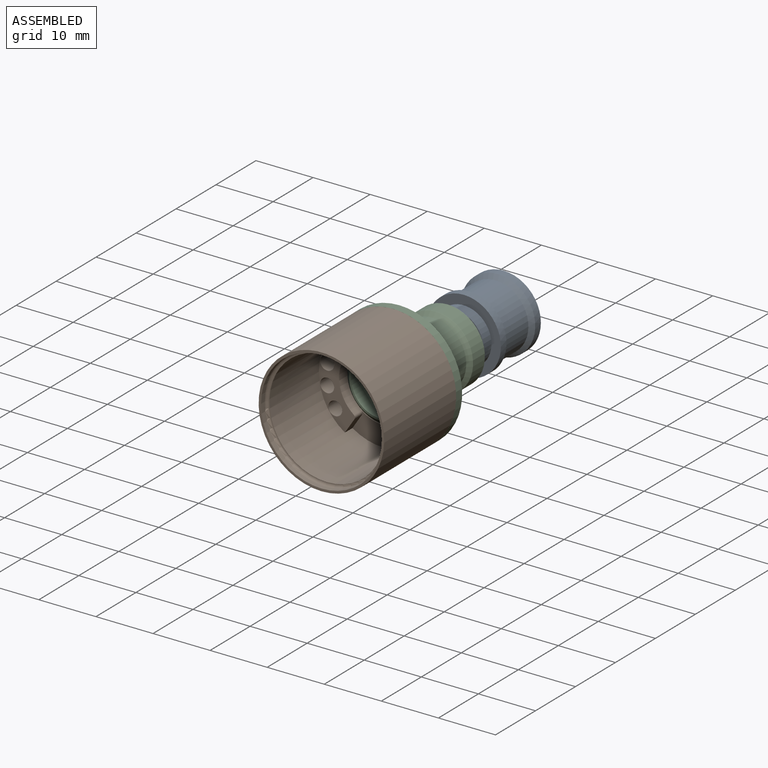
[diagram: assembled view]
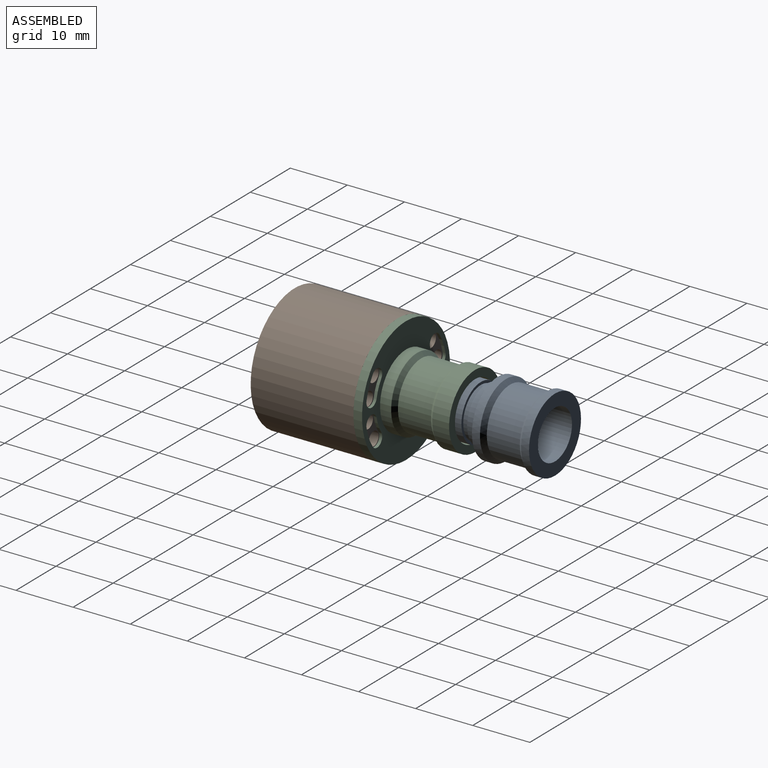
[diagram: assembled view, second angle]
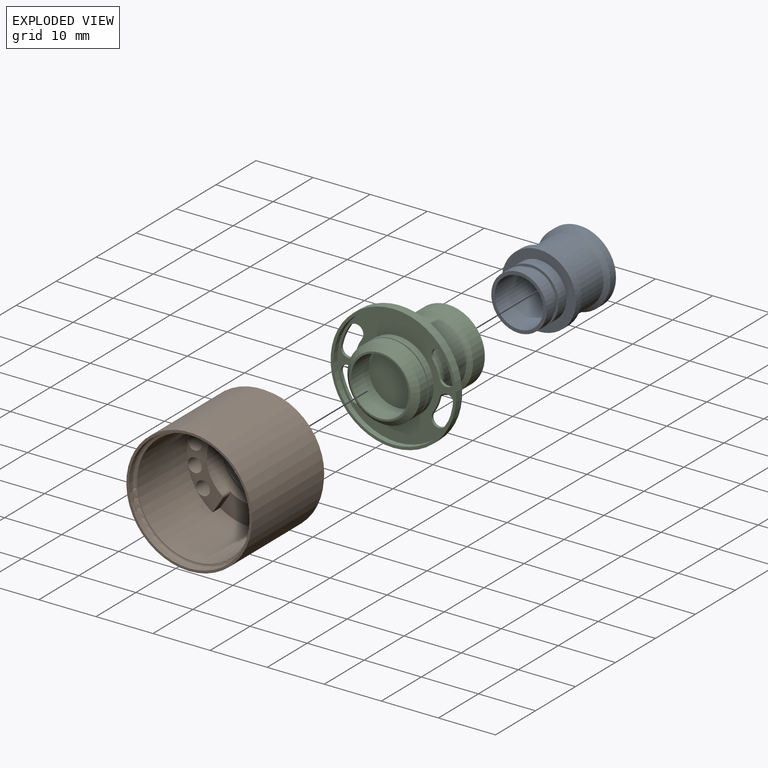
[diagram: exploded view]
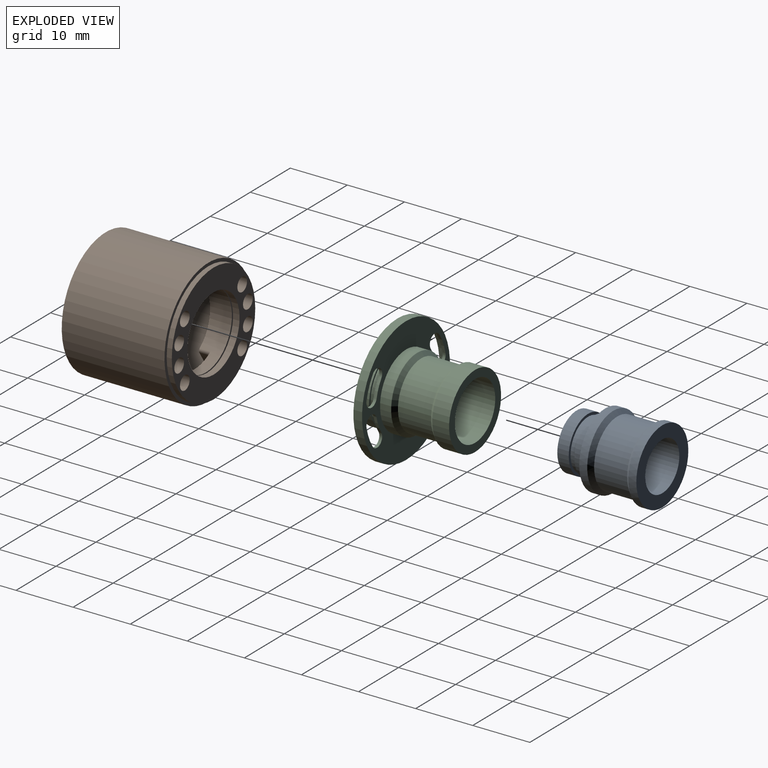
[diagram: exploded view, second angle]
ASSEMBLY  parts=3 mates=3
PART A: 14 faces, bbox 13x13x15 mm
  f0: cylinder r=4.85mm len=9.7mm, axis (0,0,1), area 60.9mm2, adj f4,f12
  f1: cylinder r=6.51mm len=13.01mm, axis (0,0,-1), area 57.2mm2, adj f5,f8
  f2: cylinder r=6.51mm len=13.01mm, axis (0,0,-1), area 57.2mm2, adj f6,f10
  f3: cylinder r=4.85mm len=9.7mm, axis (0,0,1), area 60.9mm2, adj f6,f13
  f4: plane 9.7x9.7mm, normal (0,0,-1), area 17mm2, adj f0,f7
  f5: plane 13.01x13.01mm, normal (0,0,1), area 76.1mm2, adj f1,f7
  f6: plane 13.01x13.01mm, normal (0,0,-1), area 59mm2, adj f2,f3
  f7: cylinder r=4.25mm len=15mm, axis (0,0,1), area 401mm2, adj f4,f5
  f8: cone r=5.79mm half-angle=45deg, axis (0,0,1), area 38.8mm2, adj f1,f9
  f9: cylinder r=5.79mm len=11.59mm, axis (0,0,-1), area 210.5mm2, adj f8,f10
  f10: cone r=6.51mm half-angle=45deg, axis (0,0,-1), area 38.8mm2, adj f2,f9
  f11: cylinder r=4.39mm len=8.79mm, axis (0,0,1), area 27.6mm2, adj f12,f13
  f12: plane 9.7x9.7mm, normal (0,0,1), area 13.3mm2, adj f0,f11
  f13: plane 9.7x9.7mm, normal (0,0,-1), area 13.3mm2, adj f3,f11
PART B: 34 faces, bbox 22.9x18.9x22.9 mm
  f0: cylinder r=6.52mm len=13.04mm, axis (0,1,0), area 124.9mm2, adj f10,f13,f14,f15,f18,f19,f20,f21
  f1: cylinder r=10.06mm len=20.12mm, axis (0,-1,0), area 825.9mm2, adj f8,f11,f12,f14,f16,f17,f19,f20
  f2: cylinder r=10.44mm len=20.88mm, axis (0,1,0), area 58.4mm2, adj f3,f6
  f3: plane 20.88x20.88mm, normal (0,1,0), area 171.8mm2, adj f2,f9,f22,f23,f24,f25,f26,f27
  f4: cylinder r=11mm len=22mm, axis (0,1,0), area 1244.1mm2, adj f5,f6
  f5: plane 22x22mm, normal (0,-1,0), area 28.5mm2, adj f4,f7
  f6: plane 22x22mm, normal (0,1,0), area 37.7mm2, adj f2,f4
  f7: cylinder r=10.58mm len=21.16mm, axis (0,-1,0), area 56.5mm2, adj f5,f33
  f8: plane 20.16x20.16mm, normal (0,-1,0), area 1.3mm2, adj f1,f33
  f9: cylinder r=6.52mm len=13.04mm, axis (0,1,0), area 46.7mm2, adj f3,f31
  f10: cylinder r=0.5mm len=1.89mm, axis (0,1,0), area 1.4mm2, adj f0,f11,f14,f20
  f11: plane 2.56x1.89mm, normal (0.84,0,0.55), area 5.8mm2, adj f1,f10,f14,f20
  f12: plane 2.56x1.89mm, normal (0.84,0,-0.55), area 5.8mm2, adj f1,f13,f14,f21
  f13: cylinder r=0.5mm len=1.89mm, axis (0,1,0), area 1.4mm2, adj f0,f12,f14,f21
  f14: plane 16.85x6.31mm, normal (0,-1,0), area 39.6mm2, adj f0,f1,f10,f11,f12,f13,f22,f23
  f15: cylinder r=0.5mm len=1.89mm, axis (0,1,0), area 1.4mm2, adj f0,f16,f19,f21
  f16: plane 2.56x1.89mm, normal (-0.84,0,-0.55), area 5.8mm2, adj f1,f15,f19,f21
  f17: plane 2.56x1.89mm, normal (-0.84,0,0.55), area 5.8mm2, adj f1,f18,f19,f20
  f18: cylinder r=0.5mm len=1.89mm, axis (0,1,0), area 1.4mm2, adj f0,f17,f19,f20
  f19: plane 16.85x6.31mm, normal (0,-1,0), area 39.6mm2, adj f0,f1,f15,f16,f17,f18,f24,f25
  f20: plane 11x4.87mm, normal (0,-1,0), area 34mm2, adj f0,f1,f10,f11,f17,f18
  f21: plane 11x4.87mm, normal (0,-1,0), area 34mm2, adj f0,f1,f12,f13,f15,f16
  f22: cylinder r=1.21mm len=5.17mm, axis (0,1,0), area 39.5mm2, adj f3,f14
  f23: cylinder r=1.21mm len=5.17mm, axis (0,1,0), area 39.5mm2, adj f3,f14
  f24: cylinder r=1.21mm len=5.17mm, axis (0,1,0), area 39.5mm2, adj f3,f19
  f25: cylinder r=1.21mm len=5.17mm, axis (0,1,0), area 39.5mm2, adj f3,f19
  f26: cylinder r=1.21mm len=5.17mm, axis (0,1,0), area 39.5mm2, adj f3,f19
  f27: cylinder r=1.21mm len=5.17mm, axis (0,1,0), area 39.5mm2, adj f3,f19
  f28: cylinder r=1.21mm len=5.17mm, axis (0,1,0), area 39.5mm2, adj f3,f14
  f29: cylinder r=1.21mm len=5.17mm, axis (0,1,0), area 39.5mm2, adj f3,f14
  f30: plane 14.02x14.02mm, normal (0,1,0), area 20.9mm2, adj f0,f32
  f31: plane 14.02x14.02mm, normal (0,-1,0), area 20.9mm2, adj f9,f32
  f32: cylinder r=7.01mm len=14.02mm, axis (0,1,0), area 8.8mm2, adj f30,f31
  f33: torus R=10.08mm, axis (0,-1,0), area 51.3mm2, adj f7,f8
PART C: 40 faces, bbox 22x17x22 mm
  f0: cylinder r=11mm len=22mm, axis (0,1,0), area 104.4mm2, adj f1,f2
  f1: plane 22x22mm, normal (0,-1,0), area 33.1mm2, adj f0,f3
  f2: plane 22x22mm, normal (0,1,0), area 190.4mm2, adj f0,f6,f16,f17,f18,f19,f20,f21
  f3: cylinder r=10.51mm len=21.02mm, axis (0,-1,0), area 66mm2, adj f1,f4
  f4: plane 21.02x21.02mm, normal (0,-1,0), area 162.5mm2, adj f3,f5,f16,f17,f18,f19,f20,f21
  f5: cylinder r=6.38mm len=12.75mm, axis (0,1,0), area 50.1mm2, adj f4,f34
  f6: cylinder r=6.51mm len=13.01mm, axis (0,-1,0), area 77.8mm2, adj f2,f14
  f7: cone r=6.51mm half-angle=45deg, axis (0,1,0), area 36.9mm2, adj f8,f15
  f8: cylinder r=5.8mm len=11.6mm, axis (0,-1,0), area 210.6mm2, adj f7,f9
  f9: cone r=5.8mm half-angle=45deg, axis (0,-1,0), area 36.9mm2, adj f8,f14
  f10: plane 10.1x10.1mm, normal (0,1,0), area 80.1mm2, adj f11
  f11: cylinder r=5.05mm len=12.1mm, axis (0,1,0), area 383.9mm2, adj f10,f12
  f12: plane 13.01x13.01mm, normal (0,1,0), area 52.8mm2, adj f11,f13
  f13: cylinder r=6.51mm len=13.01mm, axis (0,-1,0), area 119.5mm2, adj f12,f15
  f14: torus R=6.41mm, axis (0,1,0), area 3.2mm2, adj f6,f9
  f15: torus R=6.41mm, axis (0,1,0), area 3.2mm2, adj f7,f13
  f16: cylinder r=1.3mm len=2.57mm, axis (0,1,0), area 2.1mm2, adj f2,f4,f17,f19
  f17: cylinder r=7.51mm len=2.66mm, axis (0,1,0), area 1.5mm2, adj f2,f4,f16,f18
  f18: cylinder r=1.3mm len=2.37mm, axis (0,1,0), area 2.1mm2, adj f2,f4,f17,f19
  f19: cylinder r=10.1mm len=3.58mm, axis (0,1,0), area 2mm2, adj f2,f4,f16,f18
  f20: cylinder r=7.51mm len=2.66mm, axis (0,1,0), area 1.5mm2, adj f2,f4,f21,f23
  f21: cylinder r=1.3mm len=2.57mm, axis (0,1,0), area 2.1mm2, adj f2,f4,f20,f22
  f22: cylinder r=10.1mm len=3.58mm, axis (0,1,0), area 2mm2, adj f2,f4,f21,f23
  f23: cylinder r=1.3mm len=2.37mm, axis (0,1,0), area 2.1mm2, adj f2,f4,f20,f22
  f24: cylinder r=1.3mm len=2.57mm, axis (0,1,0), area 2.1mm2, adj f2,f4,f25,f27
  f25: cylinder r=7.51mm len=2.66mm, axis (0,1,0), area 1.5mm2, adj f2,f4,f24,f26
  f26: cylinder r=1.3mm len=2.37mm, axis (0,1,0), area 2.1mm2, adj f2,f4,f25,f27
  f27: cylinder r=10.1mm len=3.58mm, axis (0,1,0), area 2mm2, adj f2,f4,f24,f26
  f28: cylinder r=7.51mm len=2.66mm, axis (0,1,0), area 1.5mm2, adj f2,f4,f29,f31
  f29: cylinder r=1.3mm len=2.57mm, axis (0,1,0), area 2.1mm2, adj f2,f4,f28,f30
  f30: cylinder r=10.1mm len=3.58mm, axis (0,1,0), area 2mm2, adj f2,f4,f29,f31
  f31: cylinder r=1.3mm len=2.37mm, axis (0,1,0), area 2.1mm2, adj f2,f4,f28,f30
  f32: cylinder r=5.88mm len=11.75mm, axis (0,-1,0), area 7.4mm2, adj f33,f34
  f33: plane 12.75x12.75mm, normal (0,1,0), area 19.2mm2, adj f32,f39
  f34: plane 12.75x12.75mm, normal (0,-1,0), area 19.2mm2, adj f5,f32
  f35: plane 10.1x10.1mm, normal (0,-1,0), area 80.1mm2, adj f36
  f36: cylinder r=5.05mm len=10.1mm, axis (0,1,0), area 139.6mm2, adj f35,f37
  f37: plane 10.75x10.75mm, normal (0,-1,0), area 10.6mm2, adj f36,f38
  f38: cone r=5.38mm half-angle=44.7deg, axis (0,1,0), area 52.5mm2, adj f37,f39
  f39: cylinder r=6.38mm len=12.75mm, axis (0,1,0), area 77.7mm2, adj f33,f38
PLACE A rot(axis=(-1,0,0),90deg) t=(-6.89,7.58,-1.9)mm
PLACE B t=(-6.89,-9.14,-1.9)mm
PLACE C t=(-6.89,-8.52,-1.9)mm
MATE revolute A.f0 <-> C.f0  axis (0,1,0) through (-6.89,3.58,-1.9)mm
MATE cylindrical B.f0 <-> C.f0  axis (0,1,0) through (-6.89,-9.71,-1.9)mm
MATE fastened C.f0 <-> B.f0  axis (0,-1,0) through (-6.89,-10.03,-1.9)mm
